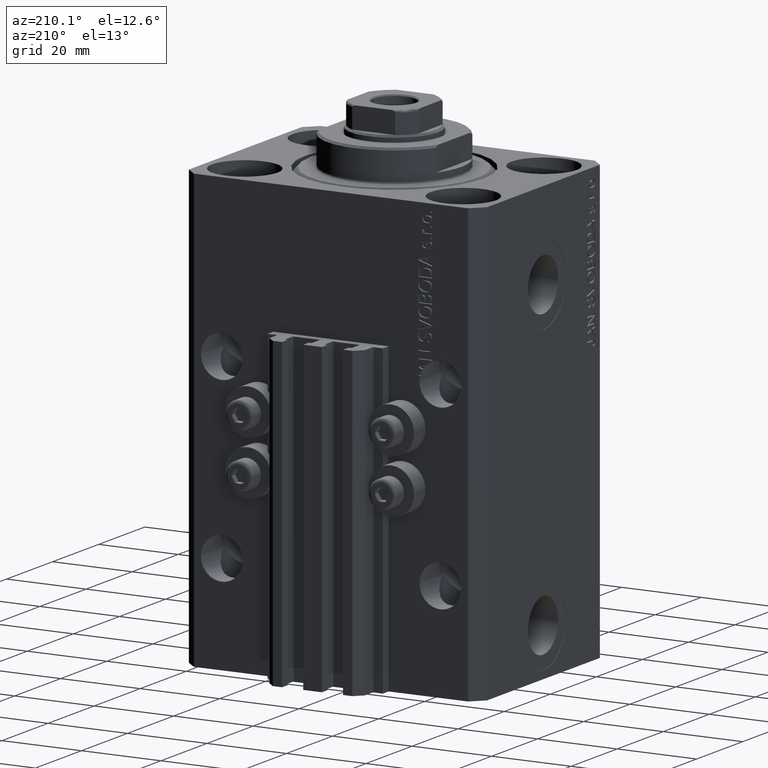
[diagram: clean part render]
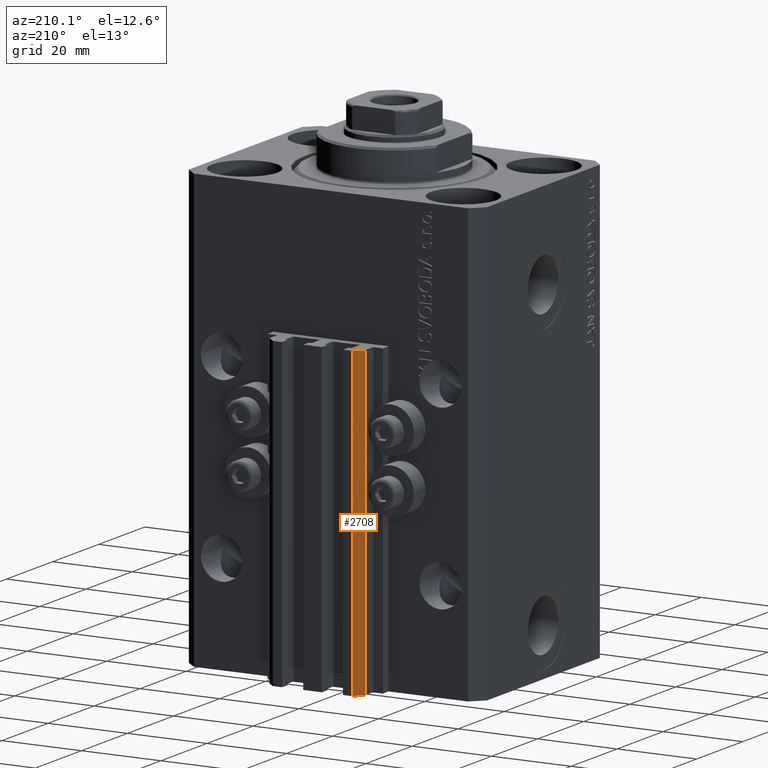
[diagram: same view with one face highlighted and labeled with its STEP entity id]
A machine part, auxiliary view. The second image highlights one B-rep face of the part: STEP entity #2708.
In plain terms, the highlighted planar face has unit normal (-0.7071, 0.7071, 0).
Its self-contained STEP definition (entity closure, byte-faithful):
#2708 = ADVANCED_FACE ( 'NONE', ( #25536 ), #47585, .T. ) ;
#3277 = ORIENTED_EDGE ( 'NONE', *, *, #42853, .F. ) ;
#3376 = EDGE_CURVE ( 'NONE', #30993, #17221, #9656, .T. ) ;
#5823 = DIRECTION ( 'NONE',  ( -0.7071067811865460184, -0.7071067811865490160, 0.000000000000000000 ) ) ;
#5851 = VECTOR ( 'NONE', #33860, 1000.000000000000000 ) ;
#6062 = CARTESIAN_POINT ( 'NONE',  ( -10.00000000000000000, 35.50000000000000000, -110.0000000000000000 ) ) ;
#6476 = EDGE_CURVE ( 'NONE', #30993, #28762, #43113, .T. ) ;
#8049 = VECTOR ( 'NONE', #21349, 1000.000000000000227 ) ;
#8411 = CARTESIAN_POINT ( 'NONE',  ( -12.00000000000000000, 33.49999999999998579, -110.0000000000000000 ) ) ;
#9060 = CARTESIAN_POINT ( 'NONE',  ( -12.00000000000000000, 33.49999999999998579, -110.0000000000000000 ) ) ;
#9656 = LINE ( 'NONE', #32896, #30264 ) ;
#10307 = DIRECTION ( 'NONE',  ( -0.7071067811865460184, -0.7071067811865489050, 0.000000000000000000 ) ) ;
#11564 = ORIENTED_EDGE ( 'NONE', *, *, #6476, .T. ) ;
#12065 = LINE ( 'NONE', #8411, #5851 ) ;
#14549 = ORIENTED_EDGE ( 'NONE', *, *, #3376, .F. ) ;
#16319 = EDGE_CURVE ( 'NONE', #28762, #35946, #12065, .T. ) ;
#17221 = VERTEX_POINT ( 'NONE', #46895 ) ;
#18329 = CARTESIAN_POINT ( 'NONE',  ( -12.00000000000000000, 33.49999999999998579, -33.00000000000000000 ) ) ;
#18538 = CARTESIAN_POINT ( 'NONE',  ( -10.00000000000000000, 35.50000000000000000, -110.0000000000000000 ) ) ;
#21349 = DIRECTION ( 'NONE',  ( -0.7071067811865460184, -0.7071067811865490160, 0.000000000000000000 ) ) ;
#21441 = EDGE_LOOP ( 'NONE', ( #3277, #14549, #11564, #30840 ) ) ;
#24012 = CARTESIAN_POINT ( 'NONE',  ( -10.00000000000000000, 35.50000000000000000, -110.0000000000000000 ) ) ;
#25536 = FACE_OUTER_BOUND ( 'NONE', #21441, .T. ) ;
#28762 = VERTEX_POINT ( 'NONE', #9060 ) ;
#29966 = DIRECTION ( 'NONE',  ( 0.000000000000000000, 0.000000000000000000, 1.000000000000000000 ) ) ;
#30229 = AXIS2_PLACEMENT_3D ( 'NONE', #18538, #35989, #10307 ) ;
#30264 = VECTOR ( 'NONE', #29966, 1000.000000000000000 ) ;
#30840 = ORIENTED_EDGE ( 'NONE', *, *, #16319, .T. ) ;
#30993 = VERTEX_POINT ( 'NONE', #24012 ) ;
#32896 = CARTESIAN_POINT ( 'NONE',  ( -10.00000000000000000, 35.50000000000000000, -110.0000000000000000 ) ) ;
#33860 = DIRECTION ( 'NONE',  ( 0.000000000000000000, 0.000000000000000000, 1.000000000000000000 ) ) ;
#35893 = LINE ( 'NONE', #36138, #8049 ) ;
#35946 = VERTEX_POINT ( 'NONE', #18329 ) ;
#35989 = DIRECTION ( 'NONE',  ( -0.7071067811865490160, 0.7071067811865461294, 0.000000000000000000 ) ) ;
#36138 = CARTESIAN_POINT ( 'NONE',  ( -10.00000000000000000, 35.50000000000000000, -33.00000000000000000 ) ) ;
#40430 = VECTOR ( 'NONE', #5823, 1000.000000000000227 ) ;
#42853 = EDGE_CURVE ( 'NONE', #17221, #35946, #35893, .T. ) ;
#43113 = LINE ( 'NONE', #6062, #40430 ) ;
#46895 = CARTESIAN_POINT ( 'NONE',  ( -10.00000000000000000, 35.50000000000000000, -33.00000000000000000 ) ) ;
#47585 = PLANE ( 'NONE',  #30229 ) ;